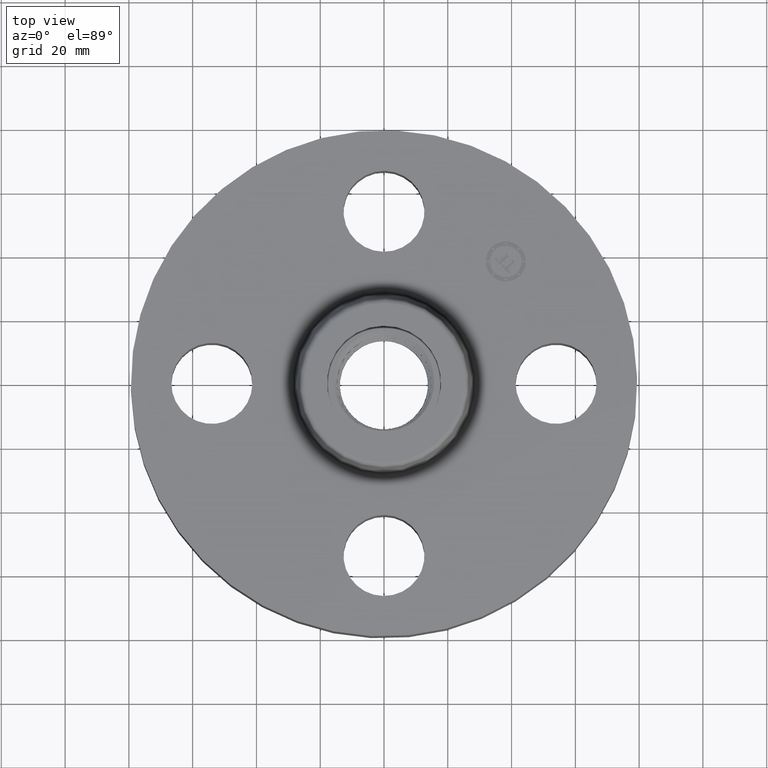
[diagram: clean part render]
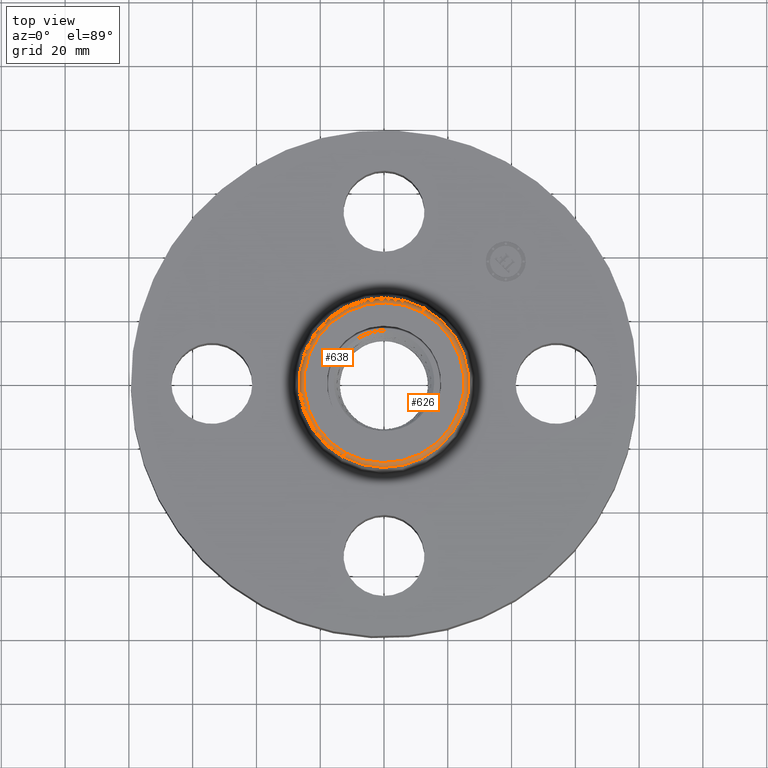
[diagram: same view with one multi-face feature highlighted, each face labeled with its STEP entity id]
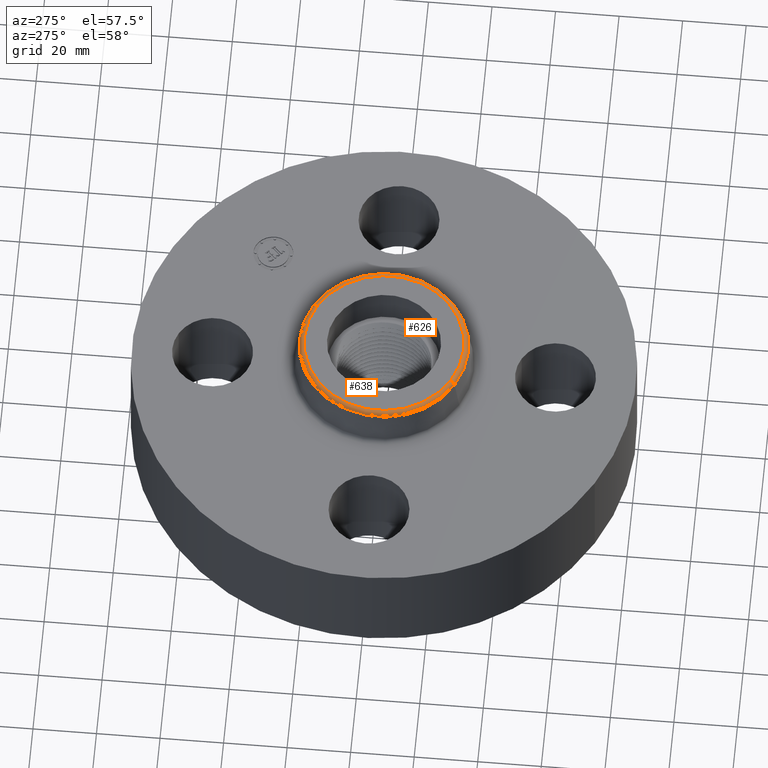
[diagram: same view with one multi-face feature highlighted, each face labeled with its STEP entity id]
A machine part, top view. The highlighted faces form ONE feature: a constant-radius fillet chain: 2 tangent blend faces with common blend radius 1.524 mm. The faces share edges in the B-rep.
A second angle (auxiliary view) of the same feature is appended — it is thin or edge-on in the first view.
Their STEP definitions:
[1] entity #638 (Torus):
#586=AXIS2_PLACEMENT_3D('Circle Axis2P3D',#584,#585,$) ;
#599=AXIS2_PLACEMENT_3D('Torus Axis2P3D',#596,#597,#598) ;
#603=AXIS2_PLACEMENT_3D('Circle Axis2P3D',#601,#602,$) ;
#617=AXIS2_PLACEMENT_3D('Circle Axis2P3D',#615,#616,$) ;
#629=AXIS2_PLACEMENT_3D('Circle Axis2P3D',#627,#628,$) ;
#562=CARTESIAN_POINT('Vertex',(0.501277273771,0.917581894811,1.83041889067)) ;
#569=CARTESIAN_POINT('Vertex',(-0.501277273771,-0.917581894811,1.83041889067)) ;
#584=CARTESIAN_POINT('Axis2P3D Location',(0.,0.,1.83041889067)) ;
#596=CARTESIAN_POINT('Axis2P3D Location',(0.,0.,1.82000000001)) ;
#601=CARTESIAN_POINT('Axis2P3D Location',(0.472948754526,0.865726888159,1.82000000001)) ;
#605=CARTESIAN_POINT('Vertex',(0.472948754526,0.865726888159,1.88000000001)) ;
#612=CARTESIAN_POINT('Vertex',(-0.472948754526,-0.865726888159,1.88000000001)) ;
#615=CARTESIAN_POINT('Axis2P3D Location',(-0.472948754526,-0.865726888159,1.82000000001)) ;
#627=CARTESIAN_POINT('Axis2P3D Location',(0.,0.,1.88000000001)) ;
#585=DIRECTION('Axis2P3D Direction',(0.,0.,-0.0393700787402)) ;
#597=DIRECTION('Axis2P3D Direction',(0.,0.,-0.0393700787402)) ;
#598=DIRECTION('Axis2P3D XDirection',(-0.0188750212049,-0.0345504945626,0.)) ;
#602=DIRECTION('Axis2P3D Direction',(-0.0345504945626,0.0188750212049,0.)) ;
#616=DIRECTION('Axis2P3D Direction',(0.0345504945626,-0.0188750212049,0.)) ;
#628=DIRECTION('Axis2P3D Direction',(0.,0.,-0.0393700787402)) ;
#633=ORIENTED_EDGE('',*,*,#588,.F.) ;
#634=ORIENTED_EDGE('',*,*,#619,.T.) ;
#635=ORIENTED_EDGE('',*,*,#631,.T.) ;
#636=ORIENTED_EDGE('',*,*,#607,.F.) ;
#638=ADVANCED_FACE('PartBody',(#637),#600,.T.) ;
#587=CIRCLE('generated circle',#586,1.04557899696) ;
#604=CIRCLE('generated circle',#603,0.0600000000002) ;
#618=CIRCLE('generated circle',#617,0.0600000000002) ;
#630=CIRCLE('generated circle',#629,0.986490531779) ;
#600=TOROIDAL_SURFACE('homeo Torus',#599,0.986490531779,0.0600000000002) ;
#588=EDGE_CURVE('',#570,#563,#587,.T.) ;
#607=EDGE_CURVE('',#563,#606,#604,.F.) ;
#619=EDGE_CURVE('',#570,#613,#618,.F.) ;
#631=EDGE_CURVE('',#613,#606,#630,.T.) ;
#632=EDGE_LOOP('',(#633,#634,#635,#636)) ;
#637=FACE_OUTER_BOUND('',#632,.T.) ;
#563=VERTEX_POINT('',#562) ;
#570=VERTEX_POINT('',#569) ;
#606=VERTEX_POINT('',#605) ;
#613=VERTEX_POINT('',#612) ;
[2] entity #626 (Torus):
#567=AXIS2_PLACEMENT_3D('Circle Axis2P3D',#565,#566,$) ;
#599=AXIS2_PLACEMENT_3D('Torus Axis2P3D',#596,#597,#598) ;
#603=AXIS2_PLACEMENT_3D('Circle Axis2P3D',#601,#602,$) ;
#610=AXIS2_PLACEMENT_3D('Circle Axis2P3D',#608,#609,$) ;
#617=AXIS2_PLACEMENT_3D('Circle Axis2P3D',#615,#616,$) ;
#562=CARTESIAN_POINT('Vertex',(0.501277273771,0.917581894811,1.83041889067)) ;
#565=CARTESIAN_POINT('Axis2P3D Location',(0.,0.,1.83041889067)) ;
#569=CARTESIAN_POINT('Vertex',(-0.501277273771,-0.917581894811,1.83041889067)) ;
#596=CARTESIAN_POINT('Axis2P3D Location',(0.,0.,1.82000000001)) ;
#601=CARTESIAN_POINT('Axis2P3D Location',(0.472948754526,0.865726888159,1.82000000001)) ;
#605=CARTESIAN_POINT('Vertex',(0.472948754526,0.865726888159,1.88000000001)) ;
#608=CARTESIAN_POINT('Axis2P3D Location',(0.,0.,1.88000000001)) ;
#612=CARTESIAN_POINT('Vertex',(-0.472948754526,-0.865726888159,1.88000000001)) ;
#615=CARTESIAN_POINT('Axis2P3D Location',(-0.472948754526,-0.865726888159,1.82000000001)) ;
#566=DIRECTION('Axis2P3D Direction',(0.,0.,-0.0393700787402)) ;
#597=DIRECTION('Axis2P3D Direction',(0.,0.,-0.0393700787402)) ;
#598=DIRECTION('Axis2P3D XDirection',(-0.0188750212049,-0.0345504945626,0.)) ;
#602=DIRECTION('Axis2P3D Direction',(-0.0345504945626,0.0188750212049,0.)) ;
#609=DIRECTION('Axis2P3D Direction',(0.,0.,-0.0393700787402)) ;
#616=DIRECTION('Axis2P3D Direction',(0.0345504945626,-0.0188750212049,0.)) ;
#621=ORIENTED_EDGE('',*,*,#571,.F.) ;
#622=ORIENTED_EDGE('',*,*,#607,.T.) ;
#623=ORIENTED_EDGE('',*,*,#614,.T.) ;
#624=ORIENTED_EDGE('',*,*,#619,.F.) ;
#626=ADVANCED_FACE('PartBody',(#625),#600,.T.) ;
#568=CIRCLE('generated circle',#567,1.04557899696) ;
#604=CIRCLE('generated circle',#603,0.0600000000002) ;
#611=CIRCLE('generated circle',#610,0.986490531779) ;
#618=CIRCLE('generated circle',#617,0.0600000000002) ;
#600=TOROIDAL_SURFACE('homeo Torus',#599,0.986490531779,0.0600000000002) ;
#571=EDGE_CURVE('',#563,#570,#568,.T.) ;
#607=EDGE_CURVE('',#563,#606,#604,.F.) ;
#614=EDGE_CURVE('',#606,#613,#611,.T.) ;
#619=EDGE_CURVE('',#570,#613,#618,.F.) ;
#620=EDGE_LOOP('',(#621,#622,#623,#624)) ;
#625=FACE_OUTER_BOUND('',#620,.T.) ;
#563=VERTEX_POINT('',#562) ;
#570=VERTEX_POINT('',#569) ;
#606=VERTEX_POINT('',#605) ;
#613=VERTEX_POINT('',#612) ;